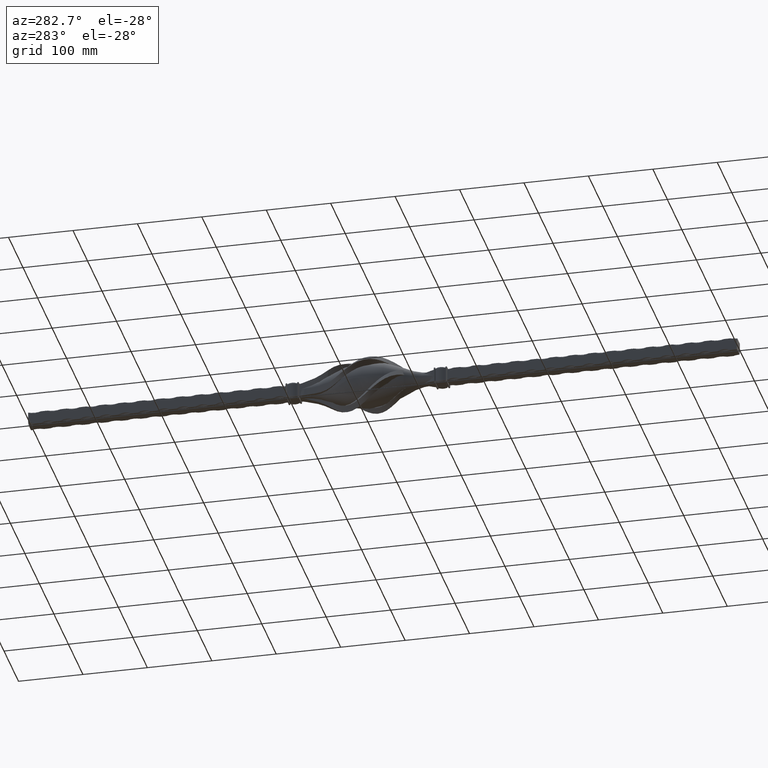
[diagram: clean part render]
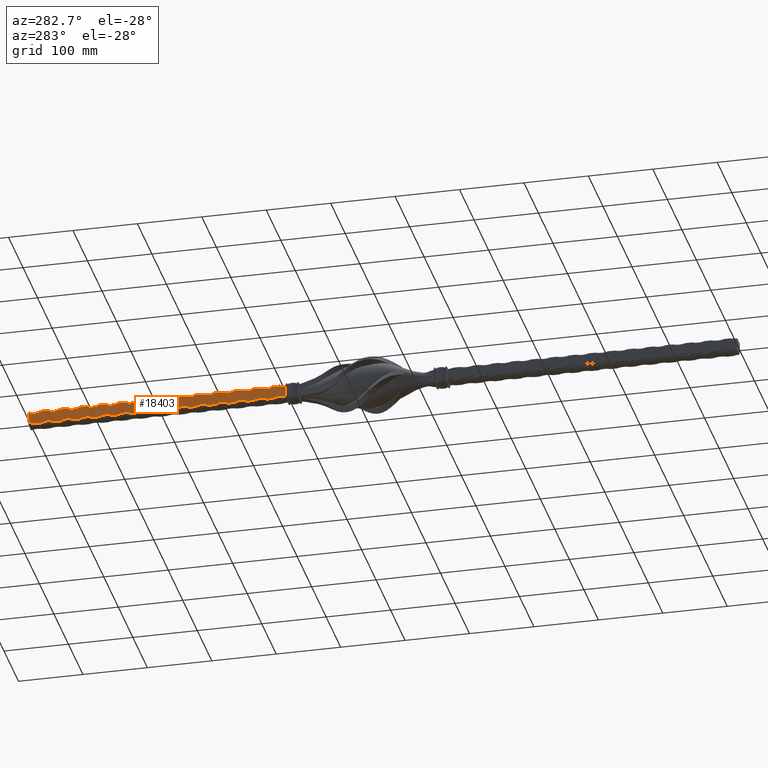
[diagram: same view with one face highlighted and labeled with its STEP entity id]
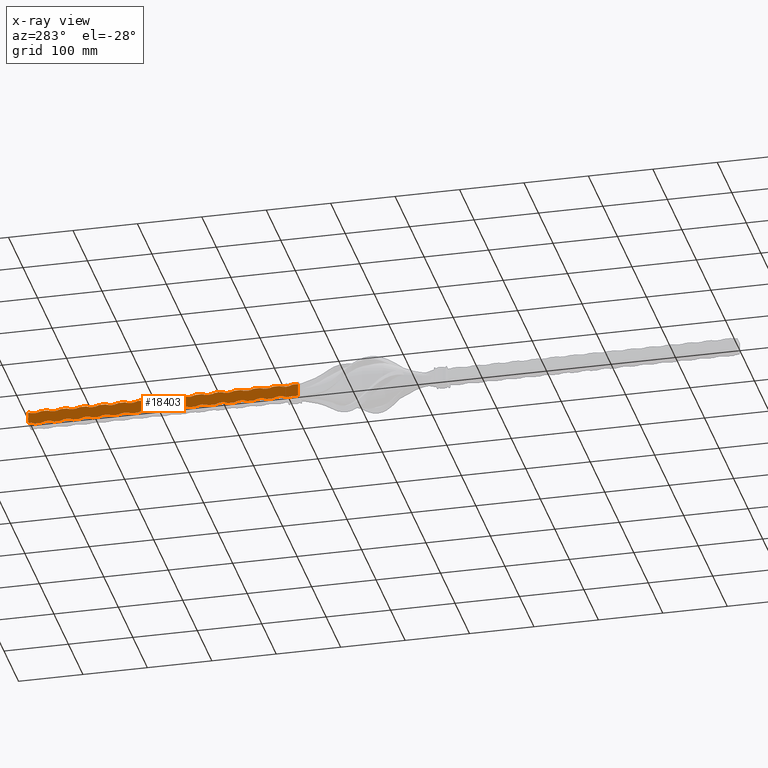
[diagram: x-ray of the same camera — body ghosted, the highlighted face saturated]
A machine part, auxiliary view. The second image highlights one B-rep face of the part: STEP entity #18403.
The next image is the same camera in x-ray: the body ghosted, the highlighted face saturated — about 0% of this face is hidden behind the body in this view.
In plain terms, the highlighted planar face has unit normal (1, -0, 0).
Its self-contained STEP definition (entity closure, byte-faithful):
#3 = DIRECTION ( 'NONE',  ( 8.673617379884036705E-17, 0.000000000000000000, 1.000000000000000000 ) ) ;
#14 = LINE ( 'NONE', #9491, #20873 ) ;
#59 = DIRECTION ( 'NONE',  ( -0.000000000000000000, -1.000000000000000000, -0.000000000000000000 ) ) ;
#217 = CARTESIAN_POINT ( 'NONE',  ( -10.00000000000000000, 234.9999999999998579, 9.999999999999779732 ) ) ;
#312 = CARTESIAN_POINT ( 'NONE',  ( -9.999999999999685585, 194.9999999999999432, -28.75000000000014566 ) ) ;
#376 = EDGE_CURVE ( 'NONE', #17358, #2939, #22392, .T. ) ;
#385 = VECTOR ( 'NONE', #17832, 1000.000000000000000 ) ;
#397 = DIRECTION ( 'NONE',  ( 1.000000000000000000, 0.000000000000000000, 1.127570259384913094E-14 ) ) ;
#456 = VECTOR ( 'NONE', #26541, 1000.000000000000000 ) ;
#467 = CARTESIAN_POINT ( 'NONE',  ( -10.00000000000000178, 144.9999999999998863, 9.999999999999779732 ) ) ;
#677 = DIRECTION ( 'NONE',  ( 1.000000000000000000, 0.000000000000000000, 1.127570259384913094E-14 ) ) ;
#843 = DIRECTION ( 'NONE',  ( -0.000000000000000000, -1.000000000000000000, -0.000000000000000000 ) ) ;
#906 = LINE ( 'NONE', #6958, #18216 ) ;
#908 = DIRECTION ( 'NONE',  ( -0.000000000000000000, -0.000000000000000000, 1.000000000000000000 ) ) ;
#923 = EDGE_CURVE ( 'NONE', #18362, #7358, #16791, .T. ) ;
#968 = CARTESIAN_POINT ( 'NONE',  ( -10.00000000000029488, 394.9999999999998863, 28.74999999999981881 ) ) ;
#971 = VERTEX_POINT ( 'NONE', #22263 ) ;
#1109 = VERTEX_POINT ( 'NONE', #17840 ) ;
#1182 = VERTEX_POINT ( 'NONE', #18672 ) ;
#1201 = ORIENTED_EDGE ( 'NONE', *, *, #923, .F. ) ;
#1223 = DIRECTION ( 'NONE',  ( -1.175530261367810682E-14, 5.224578939412491483E-15, 1.000000000000000000 ) ) ;
#1243 = ORIENTED_EDGE ( 'NONE', *, *, #2899, .T. ) ;
#1271 = VECTOR ( 'NONE', #26407, 1000.000000000000000 ) ;
#1361 = DIRECTION ( 'NONE',  ( -1.175530261367810682E-14, 2.612289469706245741E-15, 1.000000000000000000 ) ) ;
#1396 = CARTESIAN_POINT ( 'NONE',  ( -10.00000000000000178, 294.9999999999998295, 9.999999999999779732 ) ) ;
#1404 = CARTESIAN_POINT ( 'NONE',  ( -9.999999999999998224, 354.9999999999998295, 9.999999999999779732 ) ) ;
#1428 = EDGE_CURVE ( 'NONE', #1927, #25960, #11196, .T. ) ;
#1489 = ORIENTED_EDGE ( 'NONE', *, *, #8172, .T. ) ;
#1534 = ORIENTED_EDGE ( 'NONE', *, *, #25010, .F. ) ;
#1545 = CARTESIAN_POINT ( 'NONE',  ( -10.00000000000005862, 345.0000000000000000, 9.999999999999779732 ) ) ;
#1573 = VECTOR ( 'NONE', #24904, 1000.000000000000000 ) ;
#1597 = DIRECTION ( 'NONE',  ( 1.126549833810818380E-14, -2.612289469706245347E-15, -1.000000000000000000 ) ) ;
#1626 = CARTESIAN_POINT ( 'NONE',  ( -9.999999999999895195, 214.9999999999999716, -10.00000000000010303 ) ) ;
#1657 = CARTESIAN_POINT ( 'NONE',  ( -10.00000000000023803, 184.9999999999999432, 28.74999999999981881 ) ) ;
#1667 = CIRCLE ( 'NONE', #3974, 21.25000000000004263 ) ;
#1770 = CARTESIAN_POINT ( 'NONE',  ( -9.999999999999685585, 254.9999999999999432, -28.75000000000014566 ) ) ;
#1796 = VERTEX_POINT ( 'NONE', #10467 ) ;
#1818 = DIRECTION ( 'NONE',  ( -0.000000000000000000, -1.000000000000000000, -0.000000000000000000 ) ) ;
#1819 = VERTEX_POINT ( 'NONE', #14583 ) ;
#1868 = VERTEX_POINT ( 'NONE', #2561 ) ;
#1872 = VERTEX_POINT ( 'NONE', #467 ) ;
#1896 = VECTOR ( 'NONE', #10402, 1000.000000000000000 ) ;
#1927 = VERTEX_POINT ( 'NONE', #4708 ) ;
#1934 = VECTOR ( 'NONE', #6090, 1000.000000000000000 ) ;
#2152 = AXIS2_PLACEMENT_3D ( 'NONE', #12325, #6222, #20827 ) ;
#2197 = AXIS2_PLACEMENT_3D ( 'NONE', #16003, #11689, #13796 ) ;
#2304 = CARTESIAN_POINT ( 'NONE',  ( -10.00000000000000000, 114.9999999999999858, 10.00000000000000000 ) ) ;
#2321 = DIRECTION ( 'NONE',  ( 1.000000000000000000, 0.000000000000000000, 1.127570259384913094E-14 ) ) ;
#2331 = EDGE_CURVE ( 'NONE', #22323, #17349, #17050, .T. ) ;
#2346 = CIRCLE ( 'NONE', #13446, 21.25000000000004263 ) ;
#2396 = DIRECTION ( 'NONE',  ( -0.000000000000000000, -1.000000000000000000, -0.000000000000000000 ) ) ;
#2402 = DIRECTION ( 'NONE',  ( 1.000000000000000000, 0.000000000000000000, 1.127570259384913094E-14 ) ) ;
#2461 = CARTESIAN_POINT ( 'NONE',  ( -10.00000000000000178, 385.0000000000001137, -10.00000000000010303 ) ) ;
#2517 = AXIS2_PLACEMENT_3D ( 'NONE', #8706, #8363, #6354 ) ;
#2561 = CARTESIAN_POINT ( 'NONE',  ( -10.00000000000000178, 505.0000000000001137, -10.00000000000010303 ) ) ;
#2611 = VERTEX_POINT ( 'NONE', #25794 ) ;
#2683 = CARTESIAN_POINT ( 'NONE',  ( -10.00000000000000178, 475.0000000000002274, -10.00000000000010303 ) ) ;
#2687 = VERTEX_POINT ( 'NONE', #22113 ) ;
#2809 = CIRCLE ( 'NONE', #3749, 21.25000000000003908 ) ;
#2836 = DIRECTION ( 'NONE',  ( 1.126549833810818380E-14, -2.612289469706245347E-15, -1.000000000000000000 ) ) ;
#2899 = EDGE_CURVE ( 'NONE', #20672, #14449, #22936, .T. ) ;
#2916 = CARTESIAN_POINT ( 'NONE',  ( -9.999999999999685585, 434.9999999999999432, -28.75000000000014566 ) ) ;
#2939 = VERTEX_POINT ( 'NONE', #16700 ) ;
#3011 = AXIS2_PLACEMENT_3D ( 'NONE', #312, #2402, #4483 ) ;
#3018 = DIRECTION ( 'NONE',  ( -1.175530261367810682E-14, -1.306144734853122871E-15, 1.000000000000000000 ) ) ;
#3084 = CARTESIAN_POINT ( 'NONE',  ( -10.00000000000000000, 106.0000000000000000, -10.00000000000000000 ) ) ;
#3151 = ORIENTED_EDGE ( 'NONE', *, *, #21659, .F. ) ;
#3197 = VECTOR ( 'NONE', #16110, 1000.000000000000000 ) ;
#3245 = VECTOR ( 'NONE', #25417, 1000.000000000000000 ) ;
#3270 = VERTEX_POINT ( 'NONE', #17563 ) ;
#3285 = CARTESIAN_POINT ( 'NONE',  ( -9.999999999999895195, 514.9999999999998863, -10.00000000000010303 ) ) ;
#3286 = DIRECTION ( 'NONE',  ( -1.175530261367810682E-14, 2.612289469706245741E-15, 1.000000000000000000 ) ) ;
#3490 = LINE ( 'NONE', #20612, #18167 ) ;
#3518 = CIRCLE ( 'NONE', #8919, 21.25000000000003908 ) ;
#3579 = DIRECTION ( 'NONE',  ( -0.000000000000000000, -1.000000000000000000, -0.000000000000000000 ) ) ;
#3643 = AXIS2_PLACEMENT_3D ( 'NONE', #6359, #20701, #3905 ) ;
#3749 = AXIS2_PLACEMENT_3D ( 'NONE', #4350, #4701, #4612 ) ;
#3868 = EDGE_CURVE ( 'NONE', #8214, #1872, #24170, .T. ) ;
#3898 = VERTEX_POINT ( 'NONE', #8140 ) ;
#3905 = DIRECTION ( 'NONE',  ( -1.175530261367810682E-14, 2.612289469706245741E-15, 1.000000000000000000 ) ) ;
#3913 = LINE ( 'NONE', #11316, #8148 ) ;
#3917 = VERTEX_POINT ( 'NONE', #23438 ) ;
#3974 = AXIS2_PLACEMENT_3D ( 'NONE', #5855, #24872, #16328 ) ;
#4054 = AXIS2_PLACEMENT_3D ( 'NONE', #1770, #24607, #1597 ) ;
#4061 = CARTESIAN_POINT ( 'NONE',  ( -10.00000000000008349, 434.9999999999999432, 9.999999999999779732 ) ) ;
#4073 = CARTESIAN_POINT ( 'NONE',  ( -10.00000000000000000, 114.9999999999999858, -10.00000000000000000 ) ) ;
#4113 = ORIENTED_EDGE ( 'NONE', *, *, #18218, .T. ) ;
#4125 = ORIENTED_EDGE ( 'NONE', *, *, #23240, .T. ) ;
#4148 = LINE ( 'NONE', #20325, #25629 ) ;
#4331 = VERTEX_POINT ( 'NONE', #3084 ) ;
#4348 = DIRECTION ( 'NONE',  ( -0.000000000000000000, -1.000000000000000000, -0.000000000000000000 ) ) ;
#4350 = CARTESIAN_POINT ( 'NONE',  ( -10.00000000000027889, 334.9999999999999432, 28.74999999999981881 ) ) ;
#4360 = ORIENTED_EDGE ( 'NONE', *, *, #16446, .F. ) ;
#4369 = CARTESIAN_POINT ( 'NONE',  ( -9.999999999999895195, 304.9999999999999432, -10.00000000000010303 ) ) ;
#4420 = EDGE_CURVE ( 'NONE', #8897, #4682, #8800, .T. ) ;
#4483 = DIRECTION ( 'NONE',  ( 1.126549833810818380E-14, -1.306144734853122673E-15, -1.000000000000000000 ) ) ;
#4540 = VECTOR ( 'NONE', #59, 1000.000000000000000 ) ;
#4554 = CARTESIAN_POINT ( 'NONE',  ( -10.00000000000000000, 114.9999999999999858, 10.00000000000000000 ) ) ;
#4572 = VERTEX_POINT ( 'NONE', #217 ) ;
#4612 = DIRECTION ( 'NONE',  ( -1.175530261367810682E-14, 2.612289469706245741E-15, 1.000000000000000000 ) ) ;
#4682 = VERTEX_POINT ( 'NONE', #8819 ) ;
#4701 = DIRECTION ( 'NONE',  ( -1.000000000000000000, 0.000000000000000000, -1.146305272925462611E-14 ) ) ;
#4708 = CARTESIAN_POINT ( 'NONE',  ( -10.00000000000000000, 414.9999999999997726, 9.999999999999779732 ) ) ;
#4765 = VERTEX_POINT ( 'NONE', #9726 ) ;
#4814 = VECTOR ( 'NONE', #12734, 1000.000000000000000 ) ;
#4826 = AXIS2_PLACEMENT_3D ( 'NONE', #19420, #13183, #19695 ) ;
#4948 = VERTEX_POINT ( 'NONE', #10355 ) ;
#4963 = VERTEX_POINT ( 'NONE', #12092 ) ;
#4988 = VERTEX_POINT ( 'NONE', #18680 ) ;
#5032 = DIRECTION ( 'NONE',  ( 1.126549833810818380E-14, -2.612289469706245347E-15, -1.000000000000000000 ) ) ;
#5086 = EDGE_CURVE ( 'NONE', #4988, #20747, #19582, .T. ) ;
#5158 = CARTESIAN_POINT ( 'NONE',  ( -9.999999999999685585, 164.9999999999999147, -28.75000000000014566 ) ) ;
#5390 = VERTEX_POINT ( 'NONE', #4061 ) ;
#5533 = CARTESIAN_POINT ( 'NONE',  ( -10.00000000000000000, 114.9999999999999858, -10.00000000000000000 ) ) ;
#5631 = ORIENTED_EDGE ( 'NONE', *, *, #9606, .F. ) ;
#5695 = VECTOR ( 'NONE', #3579, 1000.000000000000000 ) ;
#5738 = ORIENTED_EDGE ( 'NONE', *, *, #13849, .T. ) ;
#5786 = EDGE_CURVE ( 'NONE', #1182, #8574, #9399, .T. ) ;
#5825 = CIRCLE ( 'NONE', #11584, 21.25000000000003908 ) ;
#5855 = CARTESIAN_POINT ( 'NONE',  ( -9.999999999999685585, 524.9999999999998863, -28.75000000000014566 ) ) ;
#5989 = EDGE_CURVE ( 'NONE', #23285, #12172, #16918, .T. ) ;
#6011 = ORIENTED_EDGE ( 'NONE', *, *, #11385, .F. ) ;
#6054 = VECTOR ( 'NONE', #22014, 1000.000000000000000 ) ;
#6090 = DIRECTION ( 'NONE',  ( -0.000000000000000000, -1.000000000000000000, -0.000000000000000000 ) ) ;
#6145 = VECTOR ( 'NONE', #18783, 1000.000000000000000 ) ;
#6165 = CIRCLE ( 'NONE', #13284, 21.25000000000003908 ) ;
#6209 = CARTESIAN_POINT ( 'NONE',  ( -10.00000000000000000, 474.9999999999997726, 9.999999999999779732 ) ) ;
#6222 = DIRECTION ( 'NONE',  ( -1.000000000000000000, 0.000000000000000000, -1.146305272925462611E-14 ) ) ;
#6236 = DIRECTION ( 'NONE',  ( 0.000000000000000000, 0.000000000000000000, -1.000000000000000000 ) ) ;
#6354 = DIRECTION ( 'NONE',  ( 1.126549833810818380E-14, -2.612289469706245347E-15, -1.000000000000000000 ) ) ;
#6359 = CARTESIAN_POINT ( 'NONE',  ( -10.00000000000028777, 364.9999999999999432, 28.74999999999981881 ) ) ;
#6380 = EDGE_CURVE ( 'NONE', #25960, #4948, #5825, .T. ) ;
#6461 = LINE ( 'NONE', #17727, #16895 ) ;
#6584 = CIRCLE ( 'NONE', #4826, 21.25000000000003908 ) ;
#6667 = EDGE_CURVE ( 'NONE', #10422, #12225, #6461, .T. ) ;
#6687 = ORIENTED_EDGE ( 'NONE', *, *, #24810, .F. ) ;
#6714 = CIRCLE ( 'NONE', #24661, 21.25000000000003908 ) ;
#6719 = ORIENTED_EDGE ( 'NONE', *, *, #12247, .T. ) ;
#6775 = LINE ( 'NONE', #22266, #1271 ) ;
#6958 = CARTESIAN_POINT ( 'NONE',  ( -10.00000000000000000, 114.9999999999999858, 10.00000000000000000 ) ) ;
#6982 = ORIENTED_EDGE ( 'NONE', *, *, #7942, .T. ) ;
#6990 = VERTEX_POINT ( 'NONE', #17514 ) ;
#7094 = CARTESIAN_POINT ( 'NONE',  ( -9.999999999999991118, 106.0000000000000000, -1.700029006457270953E-13 ) ) ;
#7121 = EDGE_CURVE ( 'NONE', #26282, #8897, #6775, .T. ) ;
#7123 = AXIS2_PLACEMENT_3D ( 'NONE', #15056, #17066, #8849 ) ;
#7271 = CARTESIAN_POINT ( 'NONE',  ( -10.00000000000000178, 445.0000000000001705, -10.00000000000010303 ) ) ;
#7358 = VERTEX_POINT ( 'NONE', #21947 ) ;
#7537 = EDGE_CURVE ( 'NONE', #20747, #3898, #4148, .T. ) ;
#7564 = DIRECTION ( 'NONE',  ( -0.000000000000000000, -1.000000000000000000, -0.000000000000000000 ) ) ;
#7742 = EDGE_CURVE ( 'NONE', #7358, #11538, #906, .T. ) ;
#7775 = LINE ( 'NONE', #4554, #4814 ) ;
#7868 = AXIS2_PLACEMENT_3D ( 'NONE', #2916, #21876, #2836 ) ;
#7932 = AXIS2_PLACEMENT_3D ( 'NONE', #11119, #677, #5032 ) ;
#7942 = EDGE_CURVE ( 'NONE', #1796, #13087, #22444, .T. ) ;
#8008 = ORIENTED_EDGE ( 'NONE', *, *, #17471, .T. ) ;
#8072 = DIRECTION ( 'NONE',  ( -1.175530261367810682E-14, 0.000000000000000000, 1.000000000000000000 ) ) ;
#8140 = CARTESIAN_POINT ( 'NONE',  ( -10.00000000000000178, 325.0000000000001705, -10.00000000000010303 ) ) ;
#8146 = LINE ( 'NONE', #8278, #18607 ) ;
#8148 = VECTOR ( 'NONE', #13319, 1000.000000000000000 ) ;
#8172 = EDGE_CURVE ( 'NONE', #9892, #4331, #10991, .T. ) ;
#8179 = ORIENTED_EDGE ( 'NONE', *, *, #9429, .F. ) ;
#8214 = VERTEX_POINT ( 'NONE', #26888 ) ;
#8217 = CARTESIAN_POINT ( 'NONE',  ( -10.00000000000000178, 265.0000000000001137, -10.00000000000010303 ) ) ;
#8264 = CARTESIAN_POINT ( 'NONE',  ( -10.00000000000002665, 224.9999999999999716, 9.999999999999779732 ) ) ;
#8278 = CARTESIAN_POINT ( 'NONE',  ( -10.00000000000000178, 525.0000000000000000, -9.999999999999994671 ) ) ;
#8363 = DIRECTION ( 'NONE',  ( 1.000000000000000000, 0.000000000000000000, 1.127570259384913094E-14 ) ) ;
#8430 = AXIS2_PLACEMENT_3D ( 'NONE', #10031, #26681, #14313 ) ;
#8505 = ORIENTED_EDGE ( 'NONE', *, *, #376, .T. ) ;
#8574 = VERTEX_POINT ( 'NONE', #15146 ) ;
#8591 = LINE ( 'NONE', #9709, #456 ) ;
#8646 = DIRECTION ( 'NONE',  ( 1.000000000000000000, 0.000000000000000000, 1.127570259384913094E-14 ) ) ;
#8706 = CARTESIAN_POINT ( 'NONE',  ( -9.999999999999685585, 345.0000000000000000, -28.75000000000014566 ) ) ;
#8756 = LINE ( 'NONE', #19358, #3245 ) ;
#8800 = CIRCLE ( 'NONE', #4054, 21.25000000000004263 ) ;
#8819 = CARTESIAN_POINT ( 'NONE',  ( -9.999999999999895195, 244.9999999999999432, -10.00000000000010303 ) ) ;
#8840 = LINE ( 'NONE', #24010, #24188 ) ;
#8849 = DIRECTION ( 'NONE',  ( 1.126549833810818380E-14, -2.612289469706245347E-15, -1.000000000000000000 ) ) ;
#8881 = CARTESIAN_POINT ( 'NONE',  ( -9.999999999999895195, 334.9999999999999432, -10.00000000000010303 ) ) ;
#8897 = VERTEX_POINT ( 'NONE', #8217 ) ;
#8919 = AXIS2_PLACEMENT_3D ( 'NONE', #22313, #11791, #1361 ) ;
#8958 = EDGE_CURVE ( 'NONE', #20117, #12039, #17870, .T. ) ;
#8981 = ORIENTED_EDGE ( 'NONE', *, *, #20546, .F. ) ;
#9035 = AXIS2_PLACEMENT_3D ( 'NONE', #13291, #13381, #3018 ) ;
#9112 = CARTESIAN_POINT ( 'NONE',  ( -9.999999999999895195, 424.9999999999999432, -10.00000000000010303 ) ) ;
#9190 = VECTOR ( 'NONE', #11062, 1000.000000000000000 ) ;
#9303 = CARTESIAN_POINT ( 'NONE',  ( -10.00000000000000000, 114.9999999999999858, -10.00000000000000000 ) ) ;
#9315 = ORIENTED_EDGE ( 'NONE', *, *, #25635, .T. ) ;
#9399 = LINE ( 'NONE', #25932, #26677 ) ;
#9429 = EDGE_CURVE ( 'NONE', #4963, #18362, #8146, .T. ) ;
#9491 = CARTESIAN_POINT ( 'NONE',  ( -10.00000000000000000, 106.0000000000000000, 10.00000000000000000 ) ) ;
#9514 = VECTOR ( 'NONE', #4348, 1000.000000000000000 ) ;
#9520 = LINE ( 'NONE', #13336, #15736 ) ;
#9527 = VERTEX_POINT ( 'NONE', #23478 ) ;
#9606 = EDGE_CURVE ( 'NONE', #22270, #12563, #6165, .T. ) ;
#9709 = CARTESIAN_POINT ( 'NONE',  ( -10.00000000000000000, 114.9999999999999858, 10.00000000000000000 ) ) ;
#9726 = CARTESIAN_POINT ( 'NONE',  ( -9.999999999999895195, 454.9999999999999432, -10.00000000000010303 ) ) ;
#9809 = ORIENTED_EDGE ( 'NONE', *, *, #16841, .F. ) ;
#9833 = LINE ( 'NONE', #25449, #9514 ) ;
#9892 = VERTEX_POINT ( 'NONE', #16532 ) ;
#9896 = ORIENTED_EDGE ( 'NONE', *, *, #14599, .F. ) ;
#9973 = EDGE_CURVE ( 'NONE', #4682, #1796, #18580, .T. ) ;
#9981 = CARTESIAN_POINT ( 'NONE',  ( -10.00000000000022204, 124.9999999999999432, 28.74999999999981881 ) ) ;
#10001 = CIRCLE ( 'NONE', #3011, 21.25000000000004263 ) ;
#10031 = CARTESIAN_POINT ( 'NONE',  ( -10.00000000000032152, 484.9999999999999432, 28.74999999999981881 ) ) ;
#10039 = CARTESIAN_POINT ( 'NONE',  ( -9.999999999999895195, 364.9999999999999432, -10.00000000000010303 ) ) ;
#10050 = EDGE_CURVE ( 'NONE', #4948, #6990, #8756, .T. ) ;
#10122 = DIRECTION ( 'NONE',  ( -0.000000000000000000, -1.000000000000000000, -0.000000000000000000 ) ) ;
#10221 = CARTESIAN_POINT ( 'NONE',  ( -9.999999999999998224, 204.9999999999999147, 9.999999999999779732 ) ) ;
#10355 = CARTESIAN_POINT ( 'NONE',  ( -9.999999999999998224, 384.9999999999997158, 9.999999999999779732 ) ) ;
#10402 = DIRECTION ( 'NONE',  ( -0.000000000000000000, -1.000000000000000000, -0.000000000000000000 ) ) ;
#10422 = VERTEX_POINT ( 'NONE', #18797 ) ;
#10467 = CARTESIAN_POINT ( 'NONE',  ( -10.00000000000000178, 235.0000000000001705, -10.00000000000010303 ) ) ;
#10648 = AXIS2_PLACEMENT_3D ( 'NONE', #21171, #397, #10926 ) ;
#10833 = ORIENTED_EDGE ( 'NONE', *, *, #7121, .T. ) ;
#10839 = VECTOR ( 'NONE', #20938, 1000.000000000000000 ) ;
#10926 = DIRECTION ( 'NONE',  ( 1.126549833810818380E-14, -1.306144734853122673E-15, -1.000000000000000000 ) ) ;
#10933 = VERTEX_POINT ( 'NONE', #6209 ) ;
#10939 = ORIENTED_EDGE ( 'NONE', *, *, #11602, .T. ) ;
#10991 = LINE ( 'NONE', #14788, #1896 ) ;
#11062 = DIRECTION ( 'NONE',  ( -0.000000000000000000, -1.000000000000000000, -0.000000000000000000 ) ) ;
#11096 = ORIENTED_EDGE ( 'NONE', *, *, #5086, .T. ) ;
#11100 = CARTESIAN_POINT ( 'NONE',  ( -10.00000000000000000, 114.9999999999999858, -10.00000000000000000 ) ) ;
#11119 = CARTESIAN_POINT ( 'NONE',  ( -9.999999999999685585, 314.9999999999999432, -28.75000000000014566 ) ) ;
#11145 = EDGE_CURVE ( 'NONE', #17856, #22323, #10001, .T. ) ;
#11196 = LINE ( 'NONE', #11831, #5695 ) ;
#11233 = LINE ( 'NONE', #13595, #15483 ) ;
#11316 = CARTESIAN_POINT ( 'NONE',  ( -10.00000000000000000, 114.9999999999999858, 10.00000000000000000 ) ) ;
#11385 = EDGE_CURVE ( 'NONE', #12172, #2687, #23052, .T. ) ;
#11444 = VERTEX_POINT ( 'NONE', #7271 ) ;
#11497 = ORIENTED_EDGE ( 'NONE', *, *, #25547, .F. ) ;
#11505 = DIRECTION ( 'NONE',  ( -0.000000000000000000, -1.000000000000000000, -0.000000000000000000 ) ) ;
#11538 = VERTEX_POINT ( 'NONE', #12097 ) ;
#11584 = AXIS2_PLACEMENT_3D ( 'NONE', #968, #19848, #15621 ) ;
#11602 = EDGE_CURVE ( 'NONE', #971, #16957, #3490, .T. ) ;
#11646 = LINE ( 'NONE', #24732, #1573 ) ;
#11664 = ORIENTED_EDGE ( 'NONE', *, *, #10050, .F. ) ;
#11689 = DIRECTION ( 'NONE',  ( 1.000000000000000000, 0.000000000000000000, 1.127570259384913094E-14 ) ) ;
#11717 = EDGE_CURVE ( 'NONE', #12039, #23634, #2809, .T. ) ;
#11768 = ORIENTED_EDGE ( 'NONE', *, *, #16953, .T. ) ;
#11773 = DIRECTION ( 'NONE',  ( -0.000000000000000000, -0.000000000000000000, 1.000000000000000000 ) ) ;
#11791 = DIRECTION ( 'NONE',  ( -1.000000000000000000, 0.000000000000000000, -1.146305272925462611E-14 ) ) ;
#11831 = CARTESIAN_POINT ( 'NONE',  ( -10.00000000000000000, 114.9999999999999858, 10.00000000000000000 ) ) ;
#12039 = VERTEX_POINT ( 'NONE', #1545 ) ;
#12092 = CARTESIAN_POINT ( 'NONE',  ( -9.999999999999925393, 525.0000000000000000, -7.500000000000103917 ) ) ;
#12097 = CARTESIAN_POINT ( 'NONE',  ( -10.00000000000010125, 494.9999999999999432, 9.999999999999779732 ) ) ;
#12172 = VERTEX_POINT ( 'NONE', #21367 ) ;
#12197 = ORIENTED_EDGE ( 'NONE', *, *, #4420, .T. ) ;
#12225 = VERTEX_POINT ( 'NONE', #2683 ) ;
#12247 = EDGE_CURVE ( 'NONE', #3898, #24857, #21719, .T. ) ;
#12309 = LINE ( 'NONE', #5533, #3197 ) ;
#12325 = CARTESIAN_POINT ( 'NONE',  ( -10.00000000000022915, 154.9999999999999147, 28.74999999999981881 ) ) ;
#12465 = ORIENTED_EDGE ( 'NONE', *, *, #21086, .T. ) ;
#12487 = DIRECTION ( 'NONE',  ( -1.000000000000000000, 0.000000000000000000, -1.146305272925462611E-14 ) ) ;
#12556 = EDGE_CURVE ( 'NONE', #4765, #11444, #11233, .T. ) ;
#12563 = VERTEX_POINT ( 'NONE', #10221 ) ;
#12683 = CARTESIAN_POINT ( 'NONE',  ( -9.999999999999685585, 404.9999999999999432, -28.75000000000014566 ) ) ;
#12690 = ORIENTED_EDGE ( 'NONE', *, *, #6380, .F. ) ;
#12734 = DIRECTION ( 'NONE',  ( -0.000000000000000000, -1.000000000000000000, -0.000000000000000000 ) ) ;
#12997 = CIRCLE ( 'NONE', #10648, 21.25000000000004263 ) ;
#13087 = VERTEX_POINT ( 'NONE', #1626 ) ;
#13183 = DIRECTION ( 'NONE',  ( -1.000000000000000000, 0.000000000000000000, -1.146305272925462611E-14 ) ) ;
#13191 = ORIENTED_EDGE ( 'NONE', *, *, #11145, .T. ) ;
#13284 = AXIS2_PLACEMENT_3D ( 'NONE', #15258, #19569, #15170 ) ;
#13291 = CARTESIAN_POINT ( 'NONE',  ( -10.00000000000025580, 244.9999999999999432, 28.74999999999981881 ) ) ;
#13319 = DIRECTION ( 'NONE',  ( -0.000000000000000000, -1.000000000000000000, -0.000000000000000000 ) ) ;
#13336 = CARTESIAN_POINT ( 'NONE',  ( -10.00000000000000000, 114.9999999999999858, 10.00000000000000000 ) ) ;
#13377 = ORIENTED_EDGE ( 'NONE', *, *, #25004, .T. ) ;
#13381 = DIRECTION ( 'NONE',  ( -1.000000000000000000, 0.000000000000000000, -1.146305272925462611E-14 ) ) ;
#13446 = AXIS2_PLACEMENT_3D ( 'NONE', #5158, #15451, #21936 ) ;
#13454 = CARTESIAN_POINT ( 'NONE',  ( -10.00000000000000000, 114.9999999999999858, 10.00000000000000000 ) ) ;
#13556 = ORIENTED_EDGE ( 'NONE', *, *, #25906, .T. ) ;
#13558 = ORIENTED_EDGE ( 'NONE', *, *, #22489, .F. ) ;
#13595 = CARTESIAN_POINT ( 'NONE',  ( -10.00000000000000000, 114.9999999999999858, -10.00000000000000000 ) ) ;
#13622 = CARTESIAN_POINT ( 'NONE',  ( -9.999999999999685585, 284.9999999999999432, -28.75000000000014566 ) ) ;
#13796 = DIRECTION ( 'NONE',  ( 1.126549833810818380E-14, -1.306144734853122673E-15, -1.000000000000000000 ) ) ;
#13849 = EDGE_CURVE ( 'NONE', #23132, #26282, #19082, .T. ) ;
#13965 = EDGE_CURVE ( 'NONE', #3917, #5390, #8591, .T. ) ;
#13993 = CARTESIAN_POINT ( 'NONE',  ( -10.00000000000010836, 524.9999999999998863, 9.999999999999779732 ) ) ;
#14313 = DIRECTION ( 'NONE',  ( -1.175530261367810682E-14, -2.612289469706245741E-15, 1.000000000000000000 ) ) ;
#14330 = ORIENTED_EDGE ( 'NONE', *, *, #19982, .T. ) ;
#14413 = CARTESIAN_POINT ( 'NONE',  ( -10.00000000000031264, 454.9999999999999432, 28.74999999999981881 ) ) ;
#14449 = VERTEX_POINT ( 'NONE', #10039 ) ;
#14522 = DIRECTION ( 'NONE',  ( 1.126549833810818380E-14, -2.612289469706245347E-15, -1.000000000000000000 ) ) ;
#14583 = CARTESIAN_POINT ( 'NONE',  ( -9.999999999999895195, 394.9999999999998863, -10.00000000000010303 ) ) ;
#14592 = DIRECTION ( 'NONE',  ( -1.175530261367810682E-14, -2.612289469706245741E-15, 1.000000000000000000 ) ) ;
#14599 = EDGE_CURVE ( 'NONE', #19309, #3917, #25180, .T. ) ;
#14691 = CIRCLE ( 'NONE', #20133, 21.25000000000003908 ) ;
#14788 = CARTESIAN_POINT ( 'NONE',  ( -10.00000000000000000, 114.9999999999999858, -10.00000000000000000 ) ) ;
#14817 = FACE_OUTER_BOUND ( 'NONE', #21754, .T. ) ;
#14839 = CARTESIAN_POINT ( 'NONE',  ( -10.00000000000000000, 114.9999999999999858, 10.00000000000000000 ) ) ;
#15056 = CARTESIAN_POINT ( 'NONE',  ( -9.999999999999685585, 464.9999999999999432, -28.75000000000014566 ) ) ;
#15146 = CARTESIAN_POINT ( 'NONE',  ( -10.00000000000000000, 106.0000000000000000, 10.00000000000000000 ) ) ;
#15170 = DIRECTION ( 'NONE',  ( -1.175530261367810682E-14, 1.306144734853122871E-15, 1.000000000000000000 ) ) ;
#15258 = CARTESIAN_POINT ( 'NONE',  ( -10.00000000000024691, 214.9999999999999716, 28.74999999999981881 ) ) ;
#15336 = EDGE_CURVE ( 'NONE', #4572, #22270, #9520, .T. ) ;
#15369 = ORIENTED_EDGE ( 'NONE', *, *, #9973, .T. ) ;
#15451 = DIRECTION ( 'NONE',  ( 1.000000000000000000, 0.000000000000000000, 1.127570259384913094E-14 ) ) ;
#15459 = ORIENTED_EDGE ( 'NONE', *, *, #25325, .F. ) ;
#15483 = VECTOR ( 'NONE', #10122, 1000.000000000000000 ) ;
#15522 = ORIENTED_EDGE ( 'NONE', *, *, #20698, .F. ) ;
#15617 = CARTESIAN_POINT ( 'NONE',  ( -10.00000000000000000, 114.9999999999999858, -10.00000000000000000 ) ) ;
#15621 = DIRECTION ( 'NONE',  ( -1.175530261367810682E-14, -2.612289469706245741E-15, 1.000000000000000000 ) ) ;
#15659 = DIRECTION ( 'NONE',  ( -0.000000000000000000, -1.000000000000000000, -0.000000000000000000 ) ) ;
#15736 = VECTOR ( 'NONE', #19762, 1000.000000000000000 ) ;
#15764 = CARTESIAN_POINT ( 'NONE',  ( -10.00000000000026290, 274.9999999999998863, 28.74999999999981881 ) ) ;
#15802 = DIRECTION ( 'NONE',  ( -0.000000000000000000, -1.000000000000000000, -0.000000000000000000 ) ) ;
#16003 = CARTESIAN_POINT ( 'NONE',  ( -9.999999999999685585, 224.9999999999999716, -28.75000000000014566 ) ) ;
#16052 = CIRCLE ( 'NONE', #3643, 21.25000000000003908 ) ;
#16099 = ORIENTED_EDGE ( 'NONE', *, *, #5989, .F. ) ;
#16110 = DIRECTION ( 'NONE',  ( -0.000000000000000000, -1.000000000000000000, -0.000000000000000000 ) ) ;
#16172 = ORIENTED_EDGE ( 'NONE', *, *, #18144, .F. ) ;
#16328 = DIRECTION ( 'NONE',  ( 1.126549833810818380E-14, 0.000000000000000000, -1.000000000000000000 ) ) ;
#16446 = EDGE_CURVE ( 'NONE', #5390, #1927, #6584, .T. ) ;
#16478 = CARTESIAN_POINT ( 'NONE',  ( -10.00000000000003553, 254.9999999999999432, 9.999999999999779732 ) ) ;
#16532 = CARTESIAN_POINT ( 'NONE',  ( -9.999999999999895195, 124.9999999999999432, -10.00000000000010303 ) ) ;
#16700 = CARTESIAN_POINT ( 'NONE',  ( -10.00000000000000178, 415.0000000000001705, -10.00000000000010303 ) ) ;
#16776 = VECTOR ( 'NONE', #15802, 1000.000000000000000 ) ;
#16791 = CIRCLE ( 'NONE', #21451, 21.25000000000003908 ) ;
#16841 = EDGE_CURVE ( 'NONE', #10933, #19309, #8840, .T. ) ;
#16895 = VECTOR ( 'NONE', #23909, 1000.000000000000000 ) ;
#16918 = LINE ( 'NONE', #20603, #1934 ) ;
#16953 = EDGE_CURVE ( 'NONE', #1819, #20672, #18640, .T. ) ;
#16957 = VERTEX_POINT ( 'NONE', #17938 ) ;
#17046 = ORIENTED_EDGE ( 'NONE', *, *, #22733, .T. ) ;
#17050 = LINE ( 'NONE', #4073, #10839 ) ;
#17066 = DIRECTION ( 'NONE',  ( 1.000000000000000000, 0.000000000000000000, 1.127570259384913094E-14 ) ) ;
#17221 = ORIENTED_EDGE ( 'NONE', *, *, #13965, .F. ) ;
#17349 = VERTEX_POINT ( 'NONE', #21712 ) ;
#17358 = VERTEX_POINT ( 'NONE', #9112 ) ;
#17371 = LINE ( 'NONE', #21392, #9190 ) ;
#17471 = EDGE_CURVE ( 'NONE', #4963, #20435, #1667, .T. ) ;
#17514 = CARTESIAN_POINT ( 'NONE',  ( -10.00000000000006750, 374.9999999999999432, 9.999999999999779732 ) ) ;
#17563 = CARTESIAN_POINT ( 'NONE',  ( -10.00000000000004974, 314.9999999999999432, 9.999999999999779732 ) ) ;
#17636 = CIRCLE ( 'NONE', #9035, 21.25000000000003908 ) ;
#17644 = CARTESIAN_POINT ( 'NONE',  ( -9.999999999999895195, 274.9999999999998863, -10.00000000000010303 ) ) ;
#17658 = VERTEX_POINT ( 'NONE', #7094 ) ;
#17727 = CARTESIAN_POINT ( 'NONE',  ( -10.00000000000000000, 114.9999999999999858, -10.00000000000000000 ) ) ;
#17784 = DIRECTION ( 'NONE',  ( -1.000000000000000000, 0.000000000000000000, -1.146305272925462611E-14 ) ) ;
#17831 = ORIENTED_EDGE ( 'NONE', *, *, #5786, .T. ) ;
#17832 = DIRECTION ( 'NONE',  ( -0.000000000000000000, -1.000000000000000000, -0.000000000000000000 ) ) ;
#17840 = CARTESIAN_POINT ( 'NONE',  ( -10.00000000000000000, 174.9999999999999147, 9.999999999999779732 ) ) ;
#17856 = VERTEX_POINT ( 'NONE', #18073 ) ;
#17870 = LINE ( 'NONE', #2304, #20826 ) ;
#17910 = EDGE_CURVE ( 'NONE', #2611, #1109, #14691, .T. ) ;
#17938 = CARTESIAN_POINT ( 'NONE',  ( -10.00000000000000178, 145.0000000000001705, -10.00000000000010303 ) ) ;
#18073 = CARTESIAN_POINT ( 'NONE',  ( -10.00000000000000178, 205.0000000000001421, -10.00000000000010303 ) ) ;
#18144 = EDGE_CURVE ( 'NONE', #23634, #3270, #17371, .T. ) ;
#18167 = VECTOR ( 'NONE', #20789, 1000.000000000000000 ) ;
#18216 = VECTOR ( 'NONE', #19748, 1000.000000000000000 ) ;
#18218 = EDGE_CURVE ( 'NONE', #17349, #971, #2346, .T. ) ;
#18362 = VERTEX_POINT ( 'NONE', #13993 ) ;
#18403 = ADVANCED_FACE ( 'NONE', ( #14817 ), #20760, .F. ) ;
#18459 = ORIENTED_EDGE ( 'NONE', *, *, #12556, .T. ) ;
#18466 = ORIENTED_EDGE ( 'NONE', *, *, #2331, .T. ) ;
#18580 = LINE ( 'NONE', #22925, #4540 ) ;
#18605 = DIRECTION ( 'NONE',  ( -1.175530261367810682E-14, 1.306144734853122871E-15, 1.000000000000000000 ) ) ;
#18607 = VECTOR ( 'NONE', #3, 1000.000000000000000 ) ;
#18640 = LINE ( 'NONE', #24369, #385 ) ;
#18659 = DIRECTION ( 'NONE',  ( 1.000000000000000000, -0.000000000000000000, 0.000000000000000000 ) ) ;
#18671 = CARTESIAN_POINT ( 'NONE',  ( -9.999999999999895195, 184.9999999999999432, -10.00000000000010303 ) ) ;
#18672 = CARTESIAN_POINT ( 'NONE',  ( -10.00000000000000000, 106.0000000000000000, 9.758936704211429003 ) ) ;
#18680 = CARTESIAN_POINT ( 'NONE',  ( -10.00000000000000178, 355.0000000000002274, -10.00000000000010303 ) ) ;
#18740 = EDGE_CURVE ( 'NONE', #13087, #17856, #25555, .T. ) ;
#18783 = DIRECTION ( 'NONE',  ( -0.000000000000000000, -1.000000000000000000, -0.000000000000000000 ) ) ;
#18797 = CARTESIAN_POINT ( 'NONE',  ( -9.999999999999895195, 484.9999999999999432, -10.00000000000010303 ) ) ;
#18824 = DIRECTION ( 'NONE',  ( 1.126549833810818380E-14, -2.612289469706245347E-15, -1.000000000000000000 ) ) ;
#19082 = CIRCLE ( 'NONE', #22283, 21.25000000000004263 ) ;
#19091 = CARTESIAN_POINT ( 'NONE',  ( -10.00000000000000178, 295.0000000000001705, -10.00000000000010303 ) ) ;
#19279 = AXIS2_PLACEMENT_3D ( 'NONE', #15764, #17784, #3286 ) ;
#19287 = EDGE_CURVE ( 'NONE', #2687, #19563, #26191, .T. ) ;
#19309 = VERTEX_POINT ( 'NONE', #23770 ) ;
#19352 = VECTOR ( 'NONE', #843, 1000.000000000000000 ) ;
#19358 = CARTESIAN_POINT ( 'NONE',  ( -10.00000000000000000, 114.9999999999999858, 10.00000000000000000 ) ) ;
#19420 = CARTESIAN_POINT ( 'NONE',  ( -10.00000000000030376, 424.9999999999999432, 28.74999999999981881 ) ) ;
#19430 = CARTESIAN_POINT ( 'NONE',  ( -10.00000000000000178, 114.9999999999999289, 9.999999999999779732 ) ) ;
#19563 = VERTEX_POINT ( 'NONE', #16478 ) ;
#19569 = DIRECTION ( 'NONE',  ( -1.000000000000000000, 0.000000000000000000, -1.146305272925462611E-14 ) ) ;
#19582 = CIRCLE ( 'NONE', #2517, 21.25000000000004263 ) ;
#19695 = DIRECTION ( 'NONE',  ( -1.175530261367810682E-14, -2.612289469706245741E-15, 1.000000000000000000 ) ) ;
#19748 = DIRECTION ( 'NONE',  ( -0.000000000000000000, -1.000000000000000000, -0.000000000000000000 ) ) ;
#19762 = DIRECTION ( 'NONE',  ( -0.000000000000000000, -1.000000000000000000, -0.000000000000000000 ) ) ;
#19848 = DIRECTION ( 'NONE',  ( -1.000000000000000000, 0.000000000000000000, -1.146305272925462611E-14 ) ) ;
#19866 = CARTESIAN_POINT ( 'NONE',  ( -10.00000000000000000, 324.9999999999998295, 9.999999999999779732 ) ) ;
#19982 = EDGE_CURVE ( 'NONE', #20435, #1868, #24869, .T. ) ;
#20117 = VERTEX_POINT ( 'NONE', #1404 ) ;
#20128 = AXIS2_PLACEMENT_3D ( 'NONE', #23010, #2321, #18824 ) ;
#20133 = AXIS2_PLACEMENT_3D ( 'NONE', #1657, #22704, #18605 ) ;
#20325 = CARTESIAN_POINT ( 'NONE',  ( -10.00000000000000000, 114.9999999999999858, -10.00000000000000000 ) ) ;
#20435 = VERTEX_POINT ( 'NONE', #3285 ) ;
#20455 = ORIENTED_EDGE ( 'NONE', *, *, #3868, .F. ) ;
#20546 = EDGE_CURVE ( 'NONE', #6990, #20117, #16052, .T. ) ;
#20603 = CARTESIAN_POINT ( 'NONE',  ( -10.00000000000000000, 114.9999999999999858, 10.00000000000000000 ) ) ;
#20612 = CARTESIAN_POINT ( 'NONE',  ( -10.00000000000000000, 114.9999999999999858, -10.00000000000000000 ) ) ;
#20672 = VERTEX_POINT ( 'NONE', #2461 ) ;
#20677 = CARTESIAN_POINT ( 'NONE',  ( -10.00000000000000000, 114.9999999999999858, 10.00000000000000000 ) ) ;
#20698 = EDGE_CURVE ( 'NONE', #1872, #9527, #9833, .T. ) ;
#20701 = DIRECTION ( 'NONE',  ( -1.000000000000000000, 0.000000000000000000, -1.146305272925462611E-14 ) ) ;
#20747 = VERTEX_POINT ( 'NONE', #8881 ) ;
#20760 = PLANE ( 'NONE',  #26189 ) ;
#20789 = DIRECTION ( 'NONE',  ( -0.000000000000000000, -1.000000000000000000, -0.000000000000000000 ) ) ;
#20826 = VECTOR ( 'NONE', #2396, 1000.000000000000000 ) ;
#20827 = DIRECTION ( 'NONE',  ( -1.175530261367810682E-14, 1.306144734853122871E-15, 1.000000000000000000 ) ) ;
#20873 = VECTOR ( 'NONE', #11773, 1000.000000000000000 ) ;
#20938 = DIRECTION ( 'NONE',  ( -0.000000000000000000, -1.000000000000000000, -0.000000000000000000 ) ) ;
#21086 = EDGE_CURVE ( 'NONE', #2939, #1819, #23847, .T. ) ;
#21127 = EDGE_CURVE ( 'NONE', #12225, #4765, #23514, .T. ) ;
#21171 = CARTESIAN_POINT ( 'NONE',  ( -9.999999999999685585, 134.9999999999999432, -28.75000000000014566 ) ) ;
#21233 = CARTESIAN_POINT ( 'NONE',  ( -9.999999999999685585, 494.9999999999999432, -28.75000000000014566 ) ) ;
#21367 = CARTESIAN_POINT ( 'NONE',  ( -10.00000000000004263, 284.9999999999999432, 9.999999999999779732 ) ) ;
#21392 = CARTESIAN_POINT ( 'NONE',  ( -10.00000000000000000, 114.9999999999999858, 10.00000000000000000 ) ) ;
#21431 = ORIENTED_EDGE ( 'NONE', *, *, #11717, .F. ) ;
#21451 = AXIS2_PLACEMENT_3D ( 'NONE', #24066, #23978, #1223 ) ;
#21659 = EDGE_CURVE ( 'NONE', #19563, #4572, #17636, .T. ) ;
#21712 = CARTESIAN_POINT ( 'NONE',  ( -10.00000000000000178, 175.0000000000001137, -10.00000000000010303 ) ) ;
#21719 = CIRCLE ( 'NONE', #7932, 21.25000000000004263 ) ;
#21754 = EDGE_LOOP ( 'NONE', ( #9896, #9809, #6687, #25797, #1201, #8179, #8008, #14330, #13377, #26171, #26788, #18459, #4125, #8505, #12465, #11768, #1243, #13556, #11096, #25238, #6719, #21858, #5738, #10833, #12197, #15369, #6982, #22877, #13191, #18466, #4113, #10939, #24303, #1489, #17046, #9315, #17831, #15459, #24884, #15522, #20455, #1534, #23518, #13558, #5631, #23275, #3151, #24032, #6011, #16099, #11497, #16172, #21431, #26378, #8981, #11664, #12690, #25534, #4360, #17221 ) ) ;
#21838 = DIRECTION ( 'NONE',  ( 1.000000000000000000, 0.000000000000000000, 1.127570259384913094E-14 ) ) ;
#21858 = ORIENTED_EDGE ( 'NONE', *, *, #25510, .T. ) ;
#21876 = DIRECTION ( 'NONE',  ( 1.000000000000000000, 0.000000000000000000, 1.127570259384913094E-14 ) ) ;
#21936 = DIRECTION ( 'NONE',  ( 1.126549833810818380E-14, -1.306144734853122673E-15, -1.000000000000000000 ) ) ;
#21947 = CARTESIAN_POINT ( 'NONE',  ( -10.00000000000000000, 504.9999999999996589, 9.999999999999779732 ) ) ;
#22014 = DIRECTION ( 'NONE',  ( -0.000000000000000000, -1.000000000000000000, -0.000000000000000000 ) ) ;
#22113 = CARTESIAN_POINT ( 'NONE',  ( -10.00000000000000000, 264.9999999999997726, 9.999999999999779732 ) ) ;
#22263 = CARTESIAN_POINT ( 'NONE',  ( -9.999999999999895195, 154.9999999999999147, -10.00000000000010303 ) ) ;
#22266 = CARTESIAN_POINT ( 'NONE',  ( -10.00000000000000000, 114.9999999999999858, -10.00000000000000000 ) ) ;
#22270 = VERTEX_POINT ( 'NONE', #8264 ) ;
#22283 = AXIS2_PLACEMENT_3D ( 'NONE', #13622, #21838, #25723 ) ;
#22313 = CARTESIAN_POINT ( 'NONE',  ( -10.00000000000027001, 304.9999999999999432, 28.74999999999981881 ) ) ;
#22323 = VERTEX_POINT ( 'NONE', #18671 ) ;
#22392 = LINE ( 'NONE', #15617, #6054 ) ;
#22444 = CIRCLE ( 'NONE', #2197, 21.25000000000004263 ) ;
#22489 = EDGE_CURVE ( 'NONE', #12563, #2611, #3913, .T. ) ;
#22704 = DIRECTION ( 'NONE',  ( -1.000000000000000000, 0.000000000000000000, -1.146305272925462611E-14 ) ) ;
#22733 = EDGE_CURVE ( 'NONE', #4331, #17658, #14, .T. ) ;
#22877 = ORIENTED_EDGE ( 'NONE', *, *, #18740, .T. ) ;
#22925 = CARTESIAN_POINT ( 'NONE',  ( -10.00000000000000000, 114.9999999999999858, -10.00000000000000000 ) ) ;
#22936 = CIRCLE ( 'NONE', #20128, 21.25000000000004263 ) ;
#23010 = CARTESIAN_POINT ( 'NONE',  ( -9.999999999999685585, 374.9999999999999432, -28.75000000000014566 ) ) ;
#23052 = CIRCLE ( 'NONE', #19279, 21.25000000000003908 ) ;
#23056 = EDGE_CURVE ( 'NONE', #16957, #9892, #12997, .T. ) ;
#23108 = CIRCLE ( 'NONE', #23943, 21.25000000000004263 ) ;
#23132 = VERTEX_POINT ( 'NONE', #19091 ) ;
#23240 = EDGE_CURVE ( 'NONE', #11444, #17358, #26689, .T. ) ;
#23275 = ORIENTED_EDGE ( 'NONE', *, *, #15336, .F. ) ;
#23285 = VERTEX_POINT ( 'NONE', #1396 ) ;
#23438 = CARTESIAN_POINT ( 'NONE',  ( -10.00000000000000178, 444.9999999999997726, 9.999999999999779732 ) ) ;
#23478 = CARTESIAN_POINT ( 'NONE',  ( -10.00000000000000178, 134.9999999999999432, 9.999999999999779732 ) ) ;
#23514 = CIRCLE ( 'NONE', #7123, 21.25000000000004263 ) ;
#23518 = ORIENTED_EDGE ( 'NONE', *, *, #17910, .F. ) ;
#23634 = VERTEX_POINT ( 'NONE', #19866 ) ;
#23770 = CARTESIAN_POINT ( 'NONE',  ( -10.00000000000009237, 464.9999999999999432, 9.999999999999779732 ) ) ;
#23847 = CIRCLE ( 'NONE', #24422, 21.25000000000004263 ) ;
#23863 = CARTESIAN_POINT ( 'NONE',  ( -10.00000000000007461, 404.9999999999999432, 9.999999999999779732 ) ) ;
#23909 = DIRECTION ( 'NONE',  ( -0.000000000000000000, -1.000000000000000000, -0.000000000000000000 ) ) ;
#23943 = AXIS2_PLACEMENT_3D ( 'NONE', #21233, #8646, #25313 ) ;
#23978 = DIRECTION ( 'NONE',  ( -1.000000000000000000, 0.000000000000000000, -1.146305272925462611E-14 ) ) ;
#24010 = CARTESIAN_POINT ( 'NONE',  ( -10.00000000000000000, 114.9999999999999858, 10.00000000000000000 ) ) ;
#24032 = ORIENTED_EDGE ( 'NONE', *, *, #19287, .F. ) ;
#24051 = CARTESIAN_POINT ( 'NONE',  ( -10.00000000000000000, 114.9999999999999858, -10.00000000000000000 ) ) ;
#24066 = CARTESIAN_POINT ( 'NONE',  ( -10.00000000000032863, 514.9999999999998863, 28.74999999999981881 ) ) ;
#24170 = CIRCLE ( 'NONE', #2152, 21.25000000000003908 ) ;
#24188 = VECTOR ( 'NONE', #11505, 1000.000000000000000 ) ;
#24254 = VECTOR ( 'NONE', #15659, 1000.000000000000000 ) ;
#24303 = ORIENTED_EDGE ( 'NONE', *, *, #23056, .T. ) ;
#24369 = CARTESIAN_POINT ( 'NONE',  ( -10.00000000000000000, 114.9999999999999858, -10.00000000000000000 ) ) ;
#24422 = AXIS2_PLACEMENT_3D ( 'NONE', #12683, #26977, #14522 ) ;
#24607 = DIRECTION ( 'NONE',  ( 1.000000000000000000, 0.000000000000000000, 1.127570259384913094E-14 ) ) ;
#24661 = AXIS2_PLACEMENT_3D ( 'NONE', #9981, #26447, #8072 ) ;
#24723 = AXIS2_PLACEMENT_3D ( 'NONE', #14413, #12487, #14592 ) ;
#24732 = CARTESIAN_POINT ( 'NONE',  ( -10.00000000000000000, 106.0000000000000000, 10.00000000000000000 ) ) ;
#24810 = EDGE_CURVE ( 'NONE', #11538, #10933, #26667, .T. ) ;
#24857 = VERTEX_POINT ( 'NONE', #4369 ) ;
#24869 = LINE ( 'NONE', #11100, #19352 ) ;
#24872 = DIRECTION ( 'NONE',  ( 1.000000000000000000, 0.000000000000000000, 1.127570259384913094E-14 ) ) ;
#24884 = ORIENTED_EDGE ( 'NONE', *, *, #26361, .F. ) ;
#24904 = DIRECTION ( 'NONE',  ( -0.000000000000000000, -0.000000000000000000, 1.000000000000000000 ) ) ;
#25004 = EDGE_CURVE ( 'NONE', #1868, #10422, #23108, .T. ) ;
#25010 = EDGE_CURVE ( 'NONE', #1109, #8214, #7775, .T. ) ;
#25180 = CIRCLE ( 'NONE', #24723, 21.25000000000003908 ) ;
#25238 = ORIENTED_EDGE ( 'NONE', *, *, #7537, .T. ) ;
#25313 = DIRECTION ( 'NONE',  ( 1.126549833810818380E-14, 7.836868409118736830E-15, -1.000000000000000000 ) ) ;
#25316 = VECTOR ( 'NONE', #7564, 1000.000000000000000 ) ;
#25325 = EDGE_CURVE ( 'NONE', #25841, #8574, #25338, .T. ) ;
#25338 = LINE ( 'NONE', #14839, #6145 ) ;
#25417 = DIRECTION ( 'NONE',  ( -0.000000000000000000, -1.000000000000000000, -0.000000000000000000 ) ) ;
#25449 = CARTESIAN_POINT ( 'NONE',  ( -10.00000000000000000, 114.9999999999999858, 10.00000000000000000 ) ) ;
#25510 = EDGE_CURVE ( 'NONE', #24857, #23132, #12309, .T. ) ;
#25534 = ORIENTED_EDGE ( 'NONE', *, *, #1428, .F. ) ;
#25547 = EDGE_CURVE ( 'NONE', #3270, #23285, #3518, .T. ) ;
#25555 = LINE ( 'NONE', #9303, #16776 ) ;
#25629 = VECTOR ( 'NONE', #1818, 1000.000000000000000 ) ;
#25635 = EDGE_CURVE ( 'NONE', #17658, #1182, #11646, .T. ) ;
#25723 = DIRECTION ( 'NONE',  ( 1.126549833810818380E-14, -2.612289469706245347E-15, -1.000000000000000000 ) ) ;
#25794 = CARTESIAN_POINT ( 'NONE',  ( -10.00000000000001776, 194.9999999999999432, 9.999999999999779732 ) ) ;
#25797 = ORIENTED_EDGE ( 'NONE', *, *, #7742, .F. ) ;
#25841 = VERTEX_POINT ( 'NONE', #19430 ) ;
#25906 = EDGE_CURVE ( 'NONE', #14449, #4988, #25954, .T. ) ;
#25932 = CARTESIAN_POINT ( 'NONE',  ( -10.00000000000000000, 106.0000000000000000, 10.00000000000000000 ) ) ;
#25954 = LINE ( 'NONE', #24051, #25316 ) ;
#25960 = VERTEX_POINT ( 'NONE', #23863 ) ;
#26171 = ORIENTED_EDGE ( 'NONE', *, *, #6667, .T. ) ;
#26189 = AXIS2_PLACEMENT_3D ( 'NONE', #20677, #18659, #6236 ) ;
#26191 = LINE ( 'NONE', #13454, #24254 ) ;
#26282 = VERTEX_POINT ( 'NONE', #17644 ) ;
#26361 = EDGE_CURVE ( 'NONE', #9527, #25841, #6714, .T. ) ;
#26378 = ORIENTED_EDGE ( 'NONE', *, *, #8958, .F. ) ;
#26407 = DIRECTION ( 'NONE',  ( -0.000000000000000000, -1.000000000000000000, -0.000000000000000000 ) ) ;
#26447 = DIRECTION ( 'NONE',  ( -1.000000000000000000, 0.000000000000000000, -1.146305272925462611E-14 ) ) ;
#26541 = DIRECTION ( 'NONE',  ( -0.000000000000000000, -1.000000000000000000, -0.000000000000000000 ) ) ;
#26667 = CIRCLE ( 'NONE', #8430, 21.25000000000003908 ) ;
#26677 = VECTOR ( 'NONE', #908, 1000.000000000000000 ) ;
#26681 = DIRECTION ( 'NONE',  ( -1.000000000000000000, 0.000000000000000000, -1.146305272925462611E-14 ) ) ;
#26689 = CIRCLE ( 'NONE', #7868, 21.25000000000004263 ) ;
#26788 = ORIENTED_EDGE ( 'NONE', *, *, #21127, .T. ) ;
#26888 = CARTESIAN_POINT ( 'NONE',  ( -10.00000000000000888, 164.9999999999999147, 9.999999999999779732 ) ) ;
#26977 = DIRECTION ( 'NONE',  ( 1.000000000000000000, 0.000000000000000000, 1.127570259384913094E-14 ) ) ;